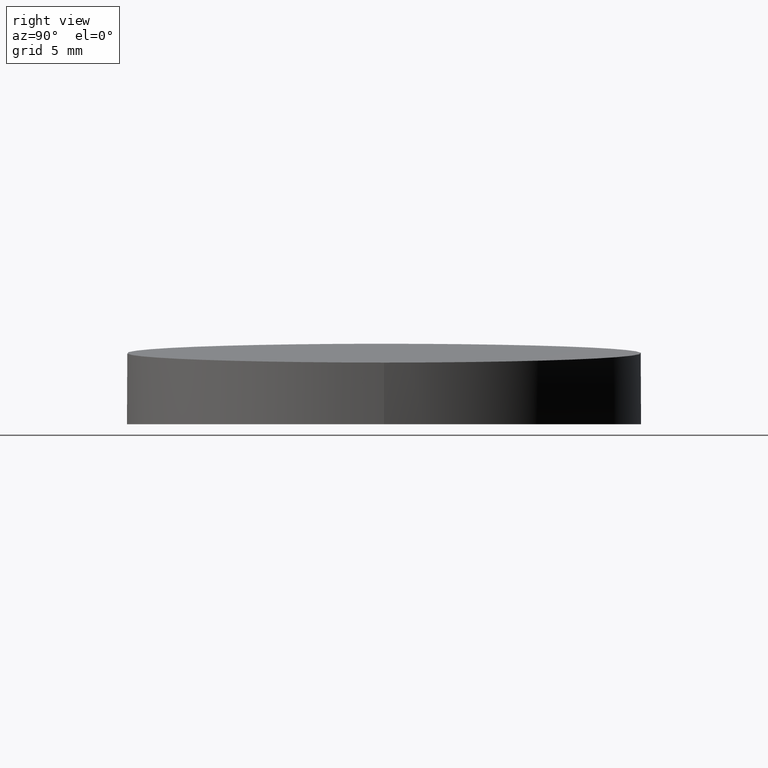
[diagram: clean part render]
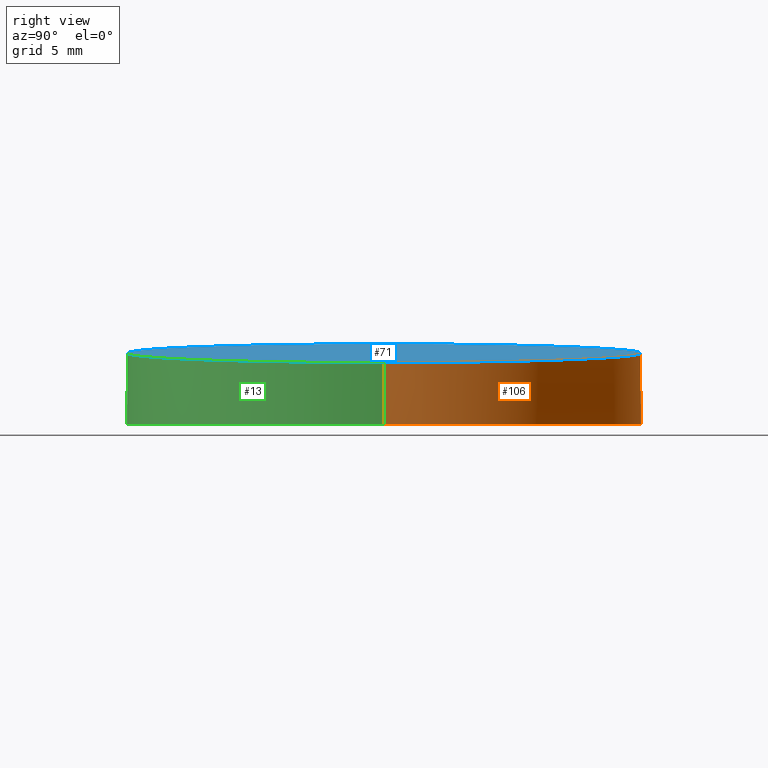
[diagram: same view with three faces highlighted in distinct colors, each labeled with its STEP entity id]
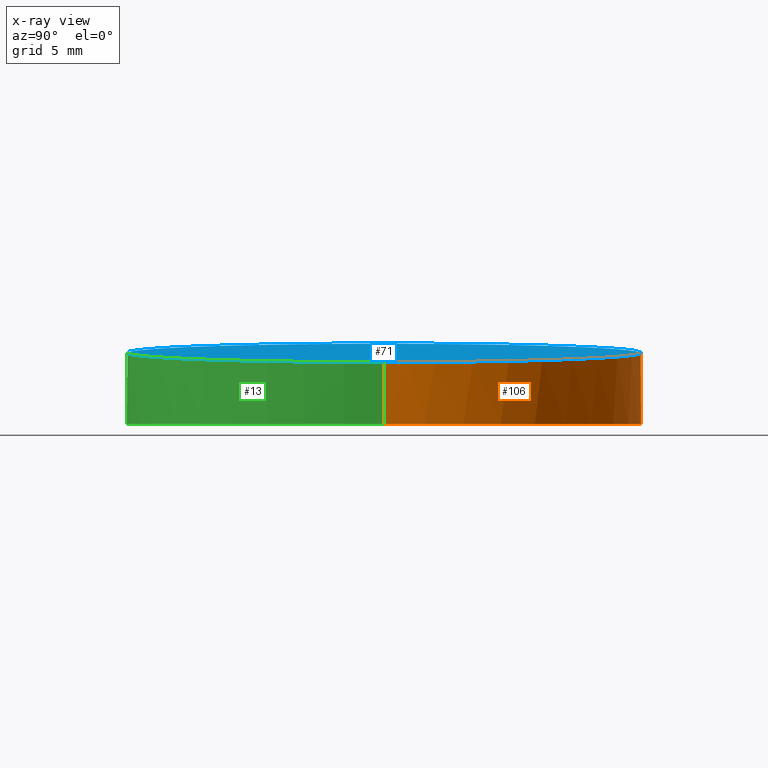
[diagram: x-ray of the same camera — body ghosted, the three highlighted faces saturated]
A machine part, right view with three faces highlighted in distinct colors.
The next image is the same camera in x-ray (body ghosted, the three faces saturated) — at least one of them is partly hidden behind the body in this view.
Their STEP definitions:

[orange] entity #106 — the highlighted cylindrical surface (partial cylindrical patch) has radius 12.5 mm, axis along (-0, -0, -1).
#1 = VERTEX_POINT ( 'NONE', #31 ) ;
#10 = CIRCLE ( 'NONE', #108, 12.49999999999999645 ) ;
#23 = CARTESIAN_POINT ( 'NONE',  ( -12.49999999999999645, 0.000000000000000000, 3.915834547854477155 ) ) ;
#24 = FACE_OUTER_BOUND ( 'NONE', #43, .T. ) ;
#31 = CARTESIAN_POINT ( 'NONE',  ( 12.49999999999999645, 1.530808498934191127E-15, 0.000000000000000000 ) ) ;
#37 = LINE ( 'NONE', #66, #134 ) ;
#43 = EDGE_LOOP ( 'NONE', ( #119, #165, #132, #91 ) ) ;
#47 = DIRECTION ( 'NONE',  ( -0.000000000000000000, -0.000000000000000000, -1.000000000000000000 ) ) ;
#49 = DIRECTION ( 'NONE',  ( -0.000000000000000000, -0.000000000000000000, -1.000000000000000000 ) ) ;
#51 = EDGE_CURVE ( 'NONE', #1, #78, #10, .T. ) ;
#63 = AXIS2_PLACEMENT_3D ( 'NONE', #139, #47, #158 ) ;
#65 = CARTESIAN_POINT ( 'NONE',  ( 12.50000000000000000, 24.99999999999998934, 2.999999999999999556 ) ) ;
#66 = CARTESIAN_POINT ( 'NONE',  ( 12.49999999999999645, 1.530808498934191127E-15, 10.00000000000000000 ) ) ;
#74 = EDGE_CURVE ( 'NONE', #133, #1, #37, .T. ) ;
#78 = VERTEX_POINT ( 'NONE', #157 ) ;
#80 = CARTESIAN_POINT ( 'NONE',  ( -12.49999999999999645, 0.000000000000000000, 3.915834547854477155 ) ) ;
#82 = EDGE_CURVE ( 'NONE', #122, #78, #85, .T. ) ;
#85 = LINE ( 'NONE', #169, #99 ) ;
#91 = ORIENTED_EDGE ( 'NONE', *, *, #82, .F. ) ;
#97 = CYLINDRICAL_SURFACE ( 'NONE', #63, 12.49999999999999645 ) ;
#99 = VECTOR ( 'NONE', #49, 1000.000000000000000 ) ;
#106 = ADVANCED_FACE ( 'NONE', ( #24 ), #97, .T. ) ;
#107 = CARTESIAN_POINT ( 'NONE',  ( 12.49999999999999645, 1.530808498934191127E-15, 3.000000000000000000 ) ) ;
#108 = AXIS2_PLACEMENT_3D ( 'NONE', #114, #140, #159 ) ;
#111 = DIRECTION ( 'NONE',  ( -0.000000000000000000, -0.000000000000000000, -1.000000000000000000 ) ) ;
#114 = CARTESIAN_POINT ( 'NONE',  ( 0.000000000000000000, 0.000000000000000000, 0.000000000000000000 ) ) ;
#119 = ORIENTED_EDGE ( 'NONE', *, *, #131, .T. ) ;
#122 = VERTEX_POINT ( 'NONE', #23 ) ;
#131 = EDGE_CURVE ( 'NONE', #122, #133, #144, .T. ) ;
#132 = ORIENTED_EDGE ( 'NONE', *, *, #51, .T. ) ;
#133 = VERTEX_POINT ( 'NONE', #135 ) ;
#134 = VECTOR ( 'NONE', #111, 1000.000000000000000 ) ;
#135 = CARTESIAN_POINT ( 'NONE',  ( 12.49999999999999645, 1.530808498934191127E-15, 3.000000000000000000 ) ) ;
#139 = CARTESIAN_POINT ( 'NONE',  ( 0.000000000000000000, 0.000000000000000000, 10.00000000000000000 ) ) ;
#140 = DIRECTION ( 'NONE',  ( 0.000000000000000000, 0.000000000000000000, 1.000000000000000000 ) ) ;
#144 =( BOUNDED_CURVE ( )  B_SPLINE_CURVE ( 3, ( #80, #148, #65, #107 ),
 .UNSPECIFIED., .F., .F. ) 
 B_SPLINE_CURVE_WITH_KNOTS ( ( 4, 4 ),
 ( 3.141592653589793116, 6.283185307179586232 ),
 .UNSPECIFIED. ) 
 CURVE ( )  GEOMETRIC_REPRESENTATION_ITEM ( )  RATIONAL_B_SPLINE_CURVE ( ( 1.000000000000000000, 0.3333333333333333703, 0.3333333333333333703, 1.000000000000000000 ) ) 
 REPRESENTATION_ITEM ( '' )  );
#148 = CARTESIAN_POINT ( 'NONE',  ( -12.50000000000000533, 24.99999999999998934, 3.915834547854476710 ) ) ;
#157 = CARTESIAN_POINT ( 'NONE',  ( -12.49999999999999645, 0.000000000000000000, 0.000000000000000000 ) ) ;
#158 = DIRECTION ( 'NONE',  ( -1.000000000000000000, 0.000000000000000000, 0.000000000000000000 ) ) ;
#159 = DIRECTION ( 'NONE',  ( 1.000000000000000000, 0.000000000000000000, 0.000000000000000000 ) ) ;
#165 = ORIENTED_EDGE ( 'NONE', *, *, #74, .T. ) ;
#169 = CARTESIAN_POINT ( 'NONE',  ( -12.49999999999999645, 0.000000000000000000, 10.00000000000000000 ) ) ;

[blue] entity #71 — the highlighted planar face has unit normal (-0.0366, 0, -0.9993).
#2 = ORIENTED_EDGE ( 'NONE', *, *, #131, .F. ) ;
#5 = CARTESIAN_POINT ( 'NONE',  ( -12.49999999999999645, 0.000000000000000000, 3.915834547854477155 ) ) ;
#6 = PLANE ( 'NONE',  #34 ) ;
#20 =( BOUNDED_CURVE ( )  B_SPLINE_CURVE ( 3, ( #83, #136, #167, #5 ),
 .UNSPECIFIED., .F., .F. ) 
 B_SPLINE_CURVE_WITH_KNOTS ( ( 4, 4 ),
 ( 0.000000000000000000, 3.141592653589793116 ),
 .UNSPECIFIED. ) 
 CURVE ( )  GEOMETRIC_REPRESENTATION_ITEM ( )  RATIONAL_B_SPLINE_CURVE ( ( 1.000000000000000000, 0.3333333333333333703, 0.3333333333333333703, 1.000000000000000000 ) ) 
 REPRESENTATION_ITEM ( '' )  );
#23 = CARTESIAN_POINT ( 'NONE',  ( -12.49999999999999645, 0.000000000000000000, 3.915834547854477155 ) ) ;
#25 = DIRECTION ( 'NONE',  ( -0.9993296722765644402, 0.000000000000000000, 0.03660882554267880229 ) ) ;
#34 = AXIS2_PLACEMENT_3D ( 'NONE', #84, #109, #25 ) ;
#65 = CARTESIAN_POINT ( 'NONE',  ( 12.50000000000000000, 24.99999999999998934, 2.999999999999999556 ) ) ;
#71 = ADVANCED_FACE ( 'NONE', ( #125 ), #6, .F. ) ;
#75 = ORIENTED_EDGE ( 'NONE', *, *, #174, .F. ) ;
#80 = CARTESIAN_POINT ( 'NONE',  ( -12.49999999999999645, 0.000000000000000000, 3.915834547854477155 ) ) ;
#83 = CARTESIAN_POINT ( 'NONE',  ( 12.49999999999999645, 1.530808498934191127E-15, 3.000000000000000000 ) ) ;
#84 = CARTESIAN_POINT ( 'NONE',  ( 12.49999999999999645, -25.00000000000000000, 3.000000000000000000 ) ) ;
#107 = CARTESIAN_POINT ( 'NONE',  ( 12.49999999999999645, 1.530808498934191127E-15, 3.000000000000000000 ) ) ;
#109 = DIRECTION ( 'NONE',  ( -0.03660882554267880229, 0.000000000000000000, -0.9993296722765644402 ) ) ;
#120 = EDGE_LOOP ( 'NONE', ( #2, #75 ) ) ;
#122 = VERTEX_POINT ( 'NONE', #23 ) ;
#125 = FACE_OUTER_BOUND ( 'NONE', #120, .T. ) ;
#131 = EDGE_CURVE ( 'NONE', #122, #133, #144, .T. ) ;
#133 = VERTEX_POINT ( 'NONE', #135 ) ;
#135 = CARTESIAN_POINT ( 'NONE',  ( 12.49999999999999645, 1.530808498934191127E-15, 3.000000000000000000 ) ) ;
#136 = CARTESIAN_POINT ( 'NONE',  ( 12.50000000000000000, -24.99999999999998934, 2.999999999999999556 ) ) ;
#144 =( BOUNDED_CURVE ( )  B_SPLINE_CURVE ( 3, ( #80, #148, #65, #107 ),
 .UNSPECIFIED., .F., .F. ) 
 B_SPLINE_CURVE_WITH_KNOTS ( ( 4, 4 ),
 ( 3.141592653589793116, 6.283185307179586232 ),
 .UNSPECIFIED. ) 
 CURVE ( )  GEOMETRIC_REPRESENTATION_ITEM ( )  RATIONAL_B_SPLINE_CURVE ( ( 1.000000000000000000, 0.3333333333333333703, 0.3333333333333333703, 1.000000000000000000 ) ) 
 REPRESENTATION_ITEM ( '' )  );
#148 = CARTESIAN_POINT ( 'NONE',  ( -12.50000000000000533, 24.99999999999998934, 3.915834547854476710 ) ) ;
#167 = CARTESIAN_POINT ( 'NONE',  ( -12.49999999999999467, -24.99999999999998934, 3.915834547854476710 ) ) ;
#174 = EDGE_CURVE ( 'NONE', #133, #122, #20, .T. ) ;

[green] entity #13 — the highlighted cylindrical surface (partial cylindrical patch) has radius 12.5 mm, axis along (-0, -0, -1).
#1 = VERTEX_POINT ( 'NONE', #31 ) ;
#5 = CARTESIAN_POINT ( 'NONE',  ( -12.49999999999999645, 0.000000000000000000, 3.915834547854477155 ) ) ;
#13 = ADVANCED_FACE ( 'NONE', ( #145 ), #58, .T. ) ;
#20 =( BOUNDED_CURVE ( )  B_SPLINE_CURVE ( 3, ( #83, #136, #167, #5 ),
 .UNSPECIFIED., .F., .F. ) 
 B_SPLINE_CURVE_WITH_KNOTS ( ( 4, 4 ),
 ( 0.000000000000000000, 3.141592653589793116 ),
 .UNSPECIFIED. ) 
 CURVE ( )  GEOMETRIC_REPRESENTATION_ITEM ( )  RATIONAL_B_SPLINE_CURVE ( ( 1.000000000000000000, 0.3333333333333333703, 0.3333333333333333703, 1.000000000000000000 ) ) 
 REPRESENTATION_ITEM ( '' )  );
#23 = CARTESIAN_POINT ( 'NONE',  ( -12.49999999999999645, 0.000000000000000000, 3.915834547854477155 ) ) ;
#30 = DIRECTION ( 'NONE',  ( -0.000000000000000000, -0.000000000000000000, -1.000000000000000000 ) ) ;
#31 = CARTESIAN_POINT ( 'NONE',  ( 12.49999999999999645, 1.530808498934191127E-15, 0.000000000000000000 ) ) ;
#32 = ORIENTED_EDGE ( 'NONE', *, *, #74, .F. ) ;
#33 = ORIENTED_EDGE ( 'NONE', *, *, #174, .T. ) ;
#37 = LINE ( 'NONE', #66, #134 ) ;
#39 = DIRECTION ( 'NONE',  ( 1.000000000000000000, 0.000000000000000000, 0.000000000000000000 ) ) ;
#44 = EDGE_LOOP ( 'NONE', ( #32, #33, #103, #61 ) ) ;
#49 = DIRECTION ( 'NONE',  ( -0.000000000000000000, -0.000000000000000000, -1.000000000000000000 ) ) ;
#58 = CYLINDRICAL_SURFACE ( 'NONE', #76, 12.49999999999999645 ) ;
#59 = CIRCLE ( 'NONE', #96, 12.49999999999999645 ) ;
#61 = ORIENTED_EDGE ( 'NONE', *, *, #86, .T. ) ;
#62 = CARTESIAN_POINT ( 'NONE',  ( 0.000000000000000000, 0.000000000000000000, 0.000000000000000000 ) ) ;
#66 = CARTESIAN_POINT ( 'NONE',  ( 12.49999999999999645, 1.530808498934191127E-15, 10.00000000000000000 ) ) ;
#74 = EDGE_CURVE ( 'NONE', #133, #1, #37, .T. ) ;
#76 = AXIS2_PLACEMENT_3D ( 'NONE', #164, #30, #90 ) ;
#78 = VERTEX_POINT ( 'NONE', #157 ) ;
#82 = EDGE_CURVE ( 'NONE', #122, #78, #85, .T. ) ;
#83 = CARTESIAN_POINT ( 'NONE',  ( 12.49999999999999645, 1.530808498934191127E-15, 3.000000000000000000 ) ) ;
#85 = LINE ( 'NONE', #169, #99 ) ;
#86 = EDGE_CURVE ( 'NONE', #78, #1, #59, .T. ) ;
#90 = DIRECTION ( 'NONE',  ( -1.000000000000000000, 0.000000000000000000, 0.000000000000000000 ) ) ;
#96 = AXIS2_PLACEMENT_3D ( 'NONE', #62, #147, #39 ) ;
#99 = VECTOR ( 'NONE', #49, 1000.000000000000000 ) ;
#103 = ORIENTED_EDGE ( 'NONE', *, *, #82, .T. ) ;
#111 = DIRECTION ( 'NONE',  ( -0.000000000000000000, -0.000000000000000000, -1.000000000000000000 ) ) ;
#122 = VERTEX_POINT ( 'NONE', #23 ) ;
#133 = VERTEX_POINT ( 'NONE', #135 ) ;
#134 = VECTOR ( 'NONE', #111, 1000.000000000000000 ) ;
#135 = CARTESIAN_POINT ( 'NONE',  ( 12.49999999999999645, 1.530808498934191127E-15, 3.000000000000000000 ) ) ;
#136 = CARTESIAN_POINT ( 'NONE',  ( 12.50000000000000000, -24.99999999999998934, 2.999999999999999556 ) ) ;
#145 = FACE_OUTER_BOUND ( 'NONE', #44, .T. ) ;
#147 = DIRECTION ( 'NONE',  ( 0.000000000000000000, 0.000000000000000000, 1.000000000000000000 ) ) ;
#157 = CARTESIAN_POINT ( 'NONE',  ( -12.49999999999999645, 0.000000000000000000, 0.000000000000000000 ) ) ;
#164 = CARTESIAN_POINT ( 'NONE',  ( 0.000000000000000000, 0.000000000000000000, 10.00000000000000000 ) ) ;
#167 = CARTESIAN_POINT ( 'NONE',  ( -12.49999999999999467, -24.99999999999998934, 3.915834547854476710 ) ) ;
#169 = CARTESIAN_POINT ( 'NONE',  ( -12.49999999999999645, 0.000000000000000000, 10.00000000000000000 ) ) ;
#174 = EDGE_CURVE ( 'NONE', #133, #122, #20, .T. ) ;